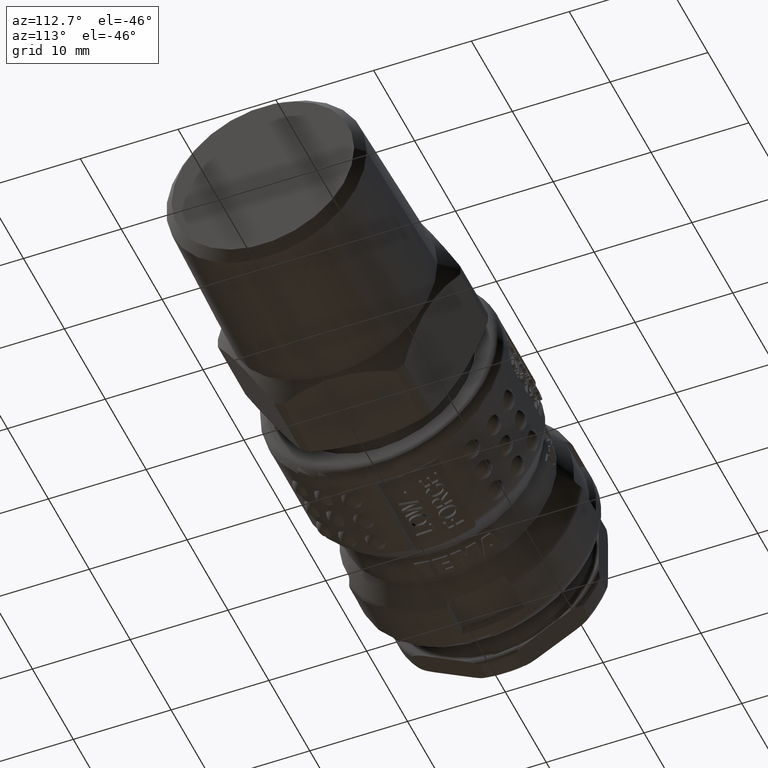
[diagram: clean part render]
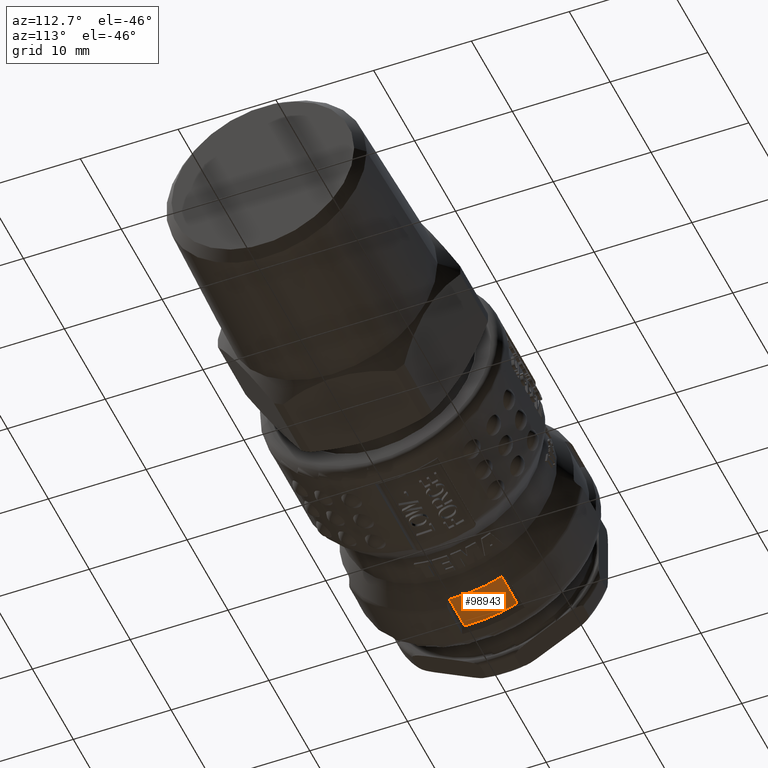
[diagram: same view with one face highlighted and labeled with its STEP entity id]
A machine part, auxiliary view. The second image highlights one B-rep face of the part: STEP entity #98943.
In plain terms, the highlighted cylindrical surface (partial cylindrical patch) has radius 12 mm, axis along (1, -0, 0).
Its self-contained STEP definition (entity closure, byte-faithful):
#97818=CARTESIAN_POINT('',(11.895749192431113,-0.768388374992561,-11.975373869118926));
#97819=VERTEX_POINT('',#97818);
#97835=CARTESIAN_POINT('',(11.895749192431113,4.617645652230772,-11.075980707388144));
#97836=VERTEX_POINT('',#97835);
#97837=CARTESIAN_POINT('',(11.895749192431111,-4.670360E-016,1.359941E-015));
#97838=DIRECTION('',(1.000000000000000,3.326794E-017,3.442495E-016));
#97839=DIRECTION('',(3.458533E-016,-0.096190905664633,-0.995362903501742));
#97840=AXIS2_PLACEMENT_3D('',#97837,#97838,#97839);
#97841=CIRCLE('',#97840,12.000000000000009);
#97842=EDGE_CURVE('',#97819,#97836,#97841,.T.);
#98836=CARTESIAN_POINT('',(8.127799999999997,-0.768388374992561,-11.975373869118926));
#98837=VERTEX_POINT('',#98836);
#98853=CARTESIAN_POINT('',(8.127799999999997,-0.768388374992561,-11.975373869118927));
#98854=DIRECTION('',(1.0,0.0,0.0));
#98855=VECTOR('',#98854,3.767949192431116);
#98856=LINE('',#98853,#98855);
#98857=EDGE_CURVE('',#98837,#97819,#98856,.T.);
#98894=CARTESIAN_POINT('',(8.127799999999997,4.617645652230772,-11.075980707388144));
#98895=VERTEX_POINT('',#98894);
#98917=CARTESIAN_POINT('',(11.895749192431113,4.617645652230773,-11.075980707388146));
#98918=DIRECTION('',(-1.0,0.0,0.0));
#98919=VECTOR('',#98918,3.767949192431116);
#98920=LINE('',#98917,#98919);
#98921=EDGE_CURVE('',#97836,#98895,#98920,.T.);
#98926=CARTESIAN_POINT('',(18.277799999999999,-8.269912E-016,2.744639E-015));
#98927=DIRECTION('',(1.0,-5.640119E-017,2.169675E-016));
#98928=DIRECTION('',(3.458533E-016,-0.096190905664633,-0.995362903501742));
#98929=AXIS2_PLACEMENT_3D('',#98926,#98927,#98928);
#98930=CYLINDRICAL_SURFACE('',#98929,12.000000000000009);
#98931=ORIENTED_EDGE('',*,*,#98857,.F.);
#98932=CARTESIAN_POINT('',(8.127799999999995,-2.545192E-016,5.424187E-016));
#98933=DIRECTION('',(1.000000000000000,3.326794E-017,3.442495E-016));
#98934=DIRECTION('',(3.458533E-016,-0.096190905664633,-0.995362903501742));
#98935=AXIS2_PLACEMENT_3D('',#98932,#98933,#98934);
#98936=CIRCLE('',#98935,12.000000000000005);
#98937=EDGE_CURVE('',#98837,#98895,#98936,.T.);
#98938=ORIENTED_EDGE('',*,*,#98937,.T.);
#98939=ORIENTED_EDGE('',*,*,#98921,.F.);
#98940=ORIENTED_EDGE('',*,*,#97842,.F.);
#98941=EDGE_LOOP('',(#98931,#98938,#98939,#98940));
#98942=FACE_OUTER_BOUND('',#98941,.T.);
#98943=ADVANCED_FACE('',(#98942),#98930,.T.);